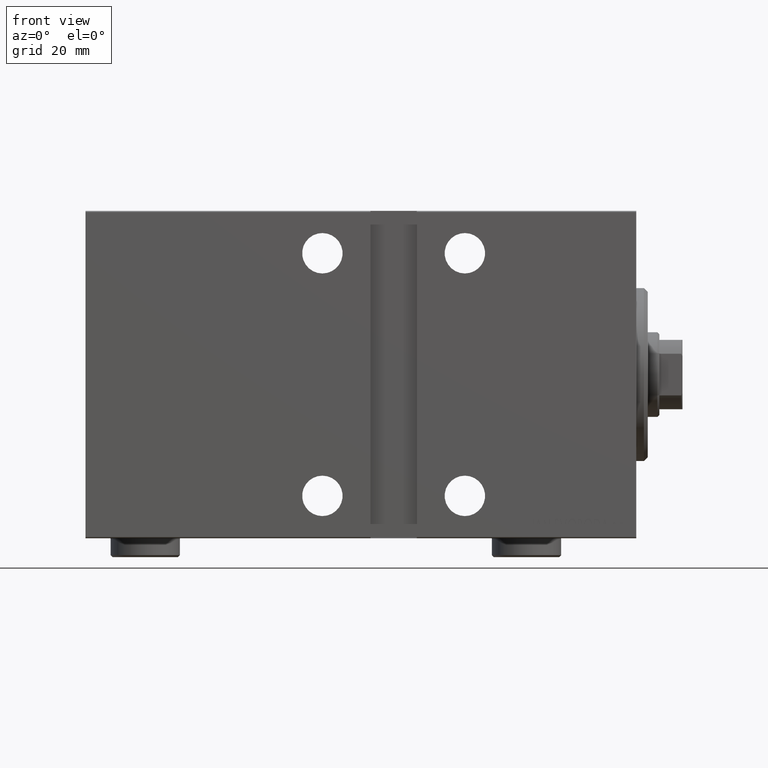
[diagram: clean part render]
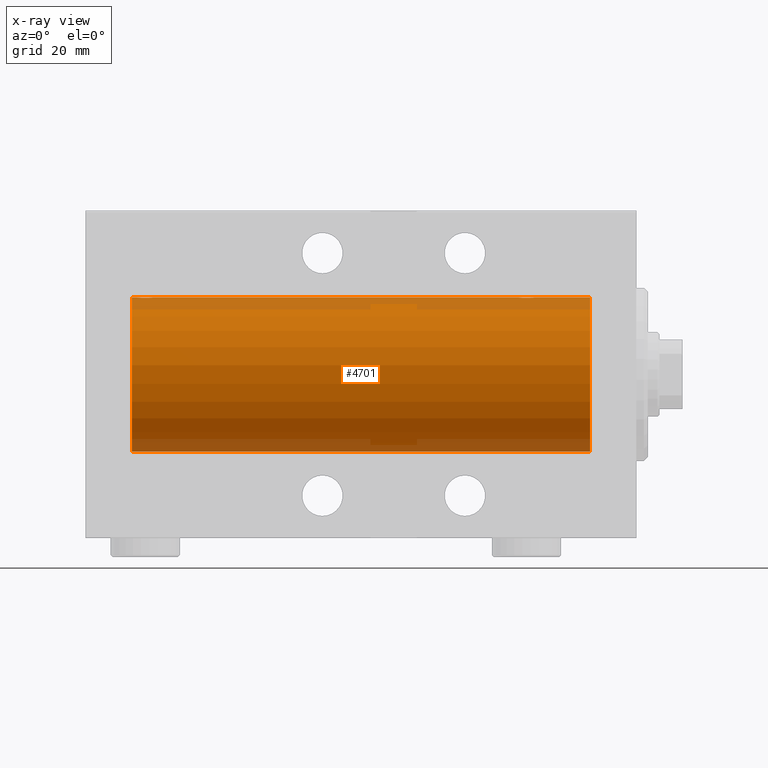
[diagram: x-ray — body ghosted, one internal face saturated and labeled with its STEP entity id]
A machine part, front view, then the same camera in x-ray: the body is ghosted and one INTERNAL B-rep face — a face not visible from any outside direction — is saturated and labeled: STEP entity #4701.
In plain terms, the highlighted cylindrical surface (partial cylindrical patch) has radius 20 mm, axis along (1, 0, -0).
Its self-contained STEP definition (entity closure, byte-faithful):
#105 = CARTESIAN_POINT ( 'NONE',  ( 128.0251390845499770, 1.947330458682955401, 19.90522393307485061 ) ) ;
#765 = CARTESIAN_POINT ( 'NONE',  ( 126.2803972465025311, 1.590453176650906020, 19.93679350243183990 ) ) ;
#1325 = CARTESIAN_POINT ( 'NONE',  ( 30.09059733457553065, 1.219458756546272449, 19.96308513509966787 ) ) ;
#1468 = EDGE_CURVE ( 'NONE', #35119, #9292, #1924, .T. ) ;
#1710 = CYLINDRICAL_SURFACE ( 'NONE', #23606, 20.00000000000000000 ) ;
#1744 = EDGE_CURVE ( 'NONE', #19951, #10643, #1963, .T. ) ;
#1769 = CARTESIAN_POINT ( 'NONE',  ( 27.28039724650255593, 1.590453176650916234, 19.93679350243183634 ) ) ;
#1899 = EDGE_CURVE ( 'NONE', #5904, #15251, #21778, .T. ) ;
#1924 = CIRCLE ( 'NONE', #38482, 20.00000000000000000 ) ;
#1963 = CIRCLE ( 'NONE', #9848, 20.00000000000000000 ) ;
#2289 = LINE ( 'NONE', #9251, #23732 ) ;
#2429 = CARTESIAN_POINT ( 'NONE',  ( 26.99261358456010385, 1.321069663197669053, 19.95654117037011233 ) ) ;
#2524 = CARTESIAN_POINT ( 'NONE',  ( 131.0000000000000000, 2.449293598294706513E-15, -20.00000000000000000 ) ) ;
#3674 = CARTESIAN_POINT ( 'NONE',  ( 131.0000000000000000, 0.000000000000000000, 20.00000000000000000 ) ) ;
#3697 = CARTESIAN_POINT ( 'NONE',  ( 126.8562886936014991, 1.898109641280507187, 19.90978941500366872 ) ) ;
#4144 = CARTESIAN_POINT ( 'NONE',  ( 129.4361522838333087, 0.5179893069484683421, 19.99370013622814568 ) ) ;
#4701 = ADVANCED_FACE ( 'NONE', ( #5285 ), #1710, .F. ) ;
#4911 = CARTESIAN_POINT ( 'NONE',  ( 29.72950112230634190, 1.598854313793186321, 19.93684595445884966 ) ) ;
#5126 = CARTESIAN_POINT ( 'NONE',  ( 26.50000000000001066, 0.1305706983324434745, 20.00000000000000000 ) ) ;
#5285 = FACE_OUTER_BOUND ( 'NONE', #10616, .T. ) ;
#5904 = VERTEX_POINT ( 'NONE', #41506 ) ;
#6629 = CARTESIAN_POINT ( 'NONE',  ( 125.5000000000000000, -1.553227679334911194E-23, 20.00000000000000000 ) ) ;
#6731 = DIRECTION ( 'NONE',  ( -1.000000000000000000, 0.000000000000000000, 0.000000000000000000 ) ) ;
#6840 = CARTESIAN_POINT ( 'NONE',  ( 125.6021031264113503, 0.6443418861413100496, 19.98998539619404013 ) ) ;
#7402 = CARTESIAN_POINT ( 'NONE',  ( 27.85628869360149196, 1.898109641280505189, 19.90978941500366872 ) ) ;
#8514 = CARTESIAN_POINT ( 'NONE',  ( 27.61403810544162596, 1.797847595792765096, 19.91909332229798224 ) ) ;
#8527 = VERTEX_POINT ( 'NONE', #42130 ) ;
#8666 = CARTESIAN_POINT ( 'NONE',  ( 131.0000000000000000, 0.000000000000000000, 0.000000000000000000 ) ) ;
#9251 = CARTESIAN_POINT ( 'NONE',  ( 131.0000000000000000, 0.000000000000000000, 20.00000000000000000 ) ) ;
#9292 = VERTEX_POINT ( 'NONE', #17060 ) ;
#9702 = DIRECTION ( 'NONE',  ( -1.000000000000000000, 0.000000000000000000, 0.000000000000000000 ) ) ;
#9848 = AXIS2_PLACEMENT_3D ( 'NONE', #37515, #6731, #37069 ) ;
#9977 = LINE ( 'NONE', #3674, #10834 ) ;
#10223 = CARTESIAN_POINT ( 'NONE',  ( 125.9099293231032703, 1.220099331833889966, 19.96304379627741099 ) ) ;
#10358 = CARTESIAN_POINT ( 'NONE',  ( 11.99999999999999645, 0.000000000000000000, 0.000000000000000000 ) ) ;
#10443 = CARTESIAN_POINT ( 'NONE',  ( 126.1793983491616729, 1.507796451871735277, 19.94330239452387588 ) ) ;
#10616 = EDGE_LOOP ( 'NONE', ( #41520, #21507, #22777, #12644, #34322, #41888, #24863, #29429 ) ) ;
#10643 = VERTEX_POINT ( 'NONE', #2524 ) ;
#10779 = CARTESIAN_POINT ( 'NONE',  ( 28.37018818709293200, 2.000047251570890250, 19.89974399317115683 ) ) ;
#10834 = VECTOR ( 'NONE', #40759, 1000.000000000000000 ) ;
#11671 = VECTOR ( 'NONE', #40701, 1000.000000000000000 ) ;
#12644 = ORIENTED_EDGE ( 'NONE', *, *, #21203, .T. ) ;
#12777 = CARTESIAN_POINT ( 'NONE',  ( 26.51308707988552271, 0.2631998640366427500, 19.99867931558986101 ) ) ;
#13823 = CARTESIAN_POINT ( 'NONE',  ( 127.7618015389743960, 1.999905101582724498, 19.89975827978156886 ) ) ;
#14263 = CARTESIAN_POINT ( 'NONE',  ( 129.0061577038071050, 1.322305185229308400, 19.95645382900617193 ) ) ;
#15032 = CARTESIAN_POINT ( 'NONE',  ( 30.00615770380713698, 1.322305185229310620, 19.95645382900617548 ) ) ;
#15251 = VERTEX_POINT ( 'NONE', #31245 ) ;
#15259 = CARTESIAN_POINT ( 'NONE',  ( 30.48701494615326268, 0.2622407139811113175, 19.99868965376115071 ) ) ;
#15483 = CARTESIAN_POINT ( 'NONE',  ( 27.49702773215045681, 1.735228749583832775, 19.92471474456648650 ) ) ;
#17060 = CARTESIAN_POINT ( 'NONE',  ( 11.99999999999999645, 2.449293598294706513E-15, -20.00000000000000000 ) ) ;
#17625 = CARTESIAN_POINT ( 'NONE',  ( 129.4999999999999432, 0.1322335637814734677, 19.99999999999999645 ) ) ;
#17846 = CARTESIAN_POINT ( 'NONE',  ( 129.0905973345755342, 1.219458756546272005, 19.96308513509966431 ) ) ;
#17957 = CARTESIAN_POINT ( 'NONE',  ( 30.43615228383326965, 0.5179893069484630130, 19.99370013622814568 ) ) ;
#18396 = CARTESIAN_POINT ( 'NONE',  ( 30.29721343056695915, 0.8872481584516769271, 19.98067755938510359 ) ) ;
#18557 = DIRECTION ( 'NONE',  ( 0.000000000000000000, 0.000000000000000000, 1.000000000000000000 ) ) ;
#19280 = CARTESIAN_POINT ( 'NONE',  ( 27.17939834916165509, 1.507796451871727283, 19.94330239452387232 ) ) ;
#19357 = DIRECTION ( 'NONE',  ( -1.000000000000000000, -0.000000000000000000, -0.000000000000000000 ) ) ;
#19951 = VERTEX_POINT ( 'NONE', #23591 ) ;
#21203 = EDGE_CURVE ( 'NONE', #8527, #43475, #40007, .T. ) ;
#21205 = CARTESIAN_POINT ( 'NONE',  ( 129.2972134305669556, 0.8872481584516767050, 19.98067755938510004 ) ) ;
#21319 = CARTESIAN_POINT ( 'NONE',  ( 30.39765113166074428, 0.6450624715427626388, 19.98996196681220638 ) ) ;
#21348 = EDGE_CURVE ( 'NONE', #43475, #5904, #9977, .T. ) ;
#21507 = ORIENTED_EDGE ( 'NONE', *, *, #1744, .F. ) ;
#21522 = LINE ( 'NONE', #35442, #28889 ) ;
#21778 = B_SPLINE_CURVE_WITH_KNOTS ( 'NONE', 3,
 ( #24682, #28483, #15259, #17957, #21319, #18396, #32086, #1325, #15032, #4911, #32306, #35021, #41550, #10779, #24464, #38185, #7402, #8514, #15483, #1769, #19280, #2429, #36573, #22633, #23089, #28922, #43532, #12777, #5126, #29147 ),
 .UNSPECIFIED., .F., .F.,
 ( 4, 2, 2, 2, 2, 2, 2, 2, 2, 2, 2, 2, 2, 2, 4 ),
 ( 1.589643878913756925E-18, 0.0003910512220831163896, 0.0007821024441662312613, 0.001173153666249345970, 0.001564204888332460788, 0.002346307332498690640, 0.003128409776664920275, 0.003519460998748035092, 0.003910512220831149910, 0.004301563442914264727, 0.004692614664997379545, 0.005083665887080494362, 0.005474717109163609180, 0.005865768331246723997, 0.006256819553329838815 ),
 .UNSPECIFIED. ) ;
#22363 = DIRECTION ( 'NONE',  ( -1.000000000000000000, -0.000000000000000000, -0.000000000000000000 ) ) ;
#22633 = CARTESIAN_POINT ( 'NONE',  ( 26.76510545398015495, 1.003547732426806283, 19.97510079925437765 ) ) ;
#22777 = ORIENTED_EDGE ( 'NONE', *, *, #25768, .T. ) ;
#22944 = LINE ( 'NONE', #36657, #11671 ) ;
#23089 = CARTESIAN_POINT ( 'NONE',  ( 26.70246098872836882, 0.8865903856744302702, 19.98070694681039328 ) ) ;
#23591 = CARTESIAN_POINT ( 'NONE',  ( 131.0000000000000000, 0.000000000000000000, 20.00000000000000000 ) ) ;
#23606 = AXIS2_PLACEMENT_3D ( 'NONE', #8666, #22363, #18557 ) ;
#23689 = CARTESIAN_POINT ( 'NONE',  ( 125.7024609887283901, 0.8865903856744294931, 19.98070694681039328 ) ) ;
#23732 = VECTOR ( 'NONE', #19357, 1000.000000000000000 ) ;
#24125 = CARTESIAN_POINT ( 'NONE',  ( 125.5642685113271284, 0.5196544277756696140, 19.99365919015135873 ) ) ;
#24464 = CARTESIAN_POINT ( 'NONE',  ( 28.23758582179998555, 1.987020435121076289, 19.90106552791689154 ) ) ;
#24575 = CARTESIAN_POINT ( 'NONE',  ( 125.9926135845601323, 1.321069663197678157, 19.95654117037011233 ) ) ;
#24682 = CARTESIAN_POINT ( 'NONE',  ( 30.50000000000000000, -1.046815686542558243E-15, 20.00000000000000000 ) ) ;
#24863 = ORIENTED_EDGE ( 'NONE', *, *, #30831, .T. ) ;
#25768 = EDGE_CURVE ( 'NONE', #19951, #8527, #2289, .T. ) ;
#26747 = DIRECTION ( 'NONE',  ( 0.000000000000000000, 0.000000000000000000, 1.000000000000000000 ) ) ;
#27262 = CARTESIAN_POINT ( 'NONE',  ( 128.7295011223063455, 1.598854313793185433, 19.93684595445884611 ) ) ;
#27481 = CARTESIAN_POINT ( 'NONE',  ( 127.2375858217999962, 1.987020435121074069, 19.90106552791689154 ) ) ;
#27928 = CARTESIAN_POINT ( 'NONE',  ( 128.5064575907383357, 1.747830109444743485, 19.92373272380676852 ) ) ;
#28238 = DIRECTION ( 'NONE',  ( -1.000000000000000000, -0.000000000000000000, -0.000000000000000000 ) ) ;
#28483 = CARTESIAN_POINT ( 'NONE',  ( 30.49999999999999645, 0.1322335637814730791, 20.00000000000000000 ) ) ;
#28889 = VECTOR ( 'NONE', #28238, 1000.000000000000000 ) ;
#28922 = CARTESIAN_POINT ( 'NONE',  ( 26.60210312641134323, 0.6443418861413102716, 19.98998539619404724 ) ) ;
#29147 = CARTESIAN_POINT ( 'NONE',  ( 26.50000000000000355, -1.552596590610734385E-23, 20.00000000000000000 ) ) ;
#29345 = EDGE_CURVE ( 'NONE', #10643, #9292, #22944, .T. ) ;
#29429 = ORIENTED_EDGE ( 'NONE', *, *, #1468, .T. ) ;
#30831 = EDGE_CURVE ( 'NONE', #15251, #35119, #21522, .T. ) ;
#31245 = CARTESIAN_POINT ( 'NONE',  ( 26.50000000000000355, -1.552596590610734385E-23, 20.00000000000000000 ) ) ;
#31299 = CARTESIAN_POINT ( 'NONE',  ( 129.2357636512789441, 1.002099838626317130, 19.97517568592526160 ) ) ;
#31526 = CARTESIAN_POINT ( 'NONE',  ( 127.3701881870929782, 2.000047251570887141, 19.89974399317116038 ) ) ;
#32086 = CARTESIAN_POINT ( 'NONE',  ( 30.23576365127896182, 1.002099838626316908, 19.97517568592526160 ) ) ;
#32306 = CARTESIAN_POINT ( 'NONE',  ( 29.50645759073830376, 1.747830109444745705, 19.92373272380676497 ) ) ;
#34322 = ORIENTED_EDGE ( 'NONE', *, *, #21348, .T. ) ;
#34906 = CARTESIAN_POINT ( 'NONE',  ( 129.4870149461532378, 0.2622407139811170351, 19.99868965376115426 ) ) ;
#35021 = CARTESIAN_POINT ( 'NONE',  ( 29.02513908454999481, 1.947330458682957621, 19.90522393307485061 ) ) ;
#35119 = VERTEX_POINT ( 'NONE', #36838 ) ;
#35442 = CARTESIAN_POINT ( 'NONE',  ( 131.0000000000000000, 0.000000000000000000, 20.00000000000000000 ) ) ;
#36573 = CARTESIAN_POINT ( 'NONE',  ( 26.90992932310325614, 1.220099331833898404, 19.96304379627741099 ) ) ;
#36657 = CARTESIAN_POINT ( 'NONE',  ( 131.0000000000000000, 2.449293598294706513E-15, -20.00000000000000000 ) ) ;
#36838 = CARTESIAN_POINT ( 'NONE',  ( 11.99999999999999645, 0.000000000000000000, 20.00000000000000000 ) ) ;
#37069 = DIRECTION ( 'NONE',  ( 0.000000000000000000, 0.000000000000000000, 1.000000000000000000 ) ) ;
#37406 = CARTESIAN_POINT ( 'NONE',  ( 125.5130870798855369, 0.2631998640366448594, 19.99867931558985390 ) ) ;
#37515 = CARTESIAN_POINT ( 'NONE',  ( 131.0000000000000000, 0.000000000000000000, 0.000000000000000000 ) ) ;
#37624 = CARTESIAN_POINT ( 'NONE',  ( 129.3976511316607514, 0.6450624715427629718, 19.98996196681220638 ) ) ;
#37849 = CARTESIAN_POINT ( 'NONE',  ( 125.4999999999999716, 0.1305706983324441128, 20.00000000000000000 ) ) ;
#38185 = CARTESIAN_POINT ( 'NONE',  ( 27.98100525813888595, 1.935912154109700412, 19.90610216711451130 ) ) ;
#38482 = AXIS2_PLACEMENT_3D ( 'NONE', #10358, #9702, #26747 ) ;
#40007 = B_SPLINE_CURVE_WITH_KNOTS ( 'NONE', 3,
 ( #40996, #17625, #34906, #4144, #37624, #21205, #31299, #17846, #14263, #27262, #27928, #105, #13823, #31526, #27481, #44360, #3697, #41655, #41216, #765, #10443, #24575, #10223, #40783, #23689, #6840, #24125, #37406, #37849, #6629 ),
 .UNSPECIFIED., .F., .F.,
 ( 4, 2, 2, 2, 2, 2, 2, 2, 2, 2, 2, 2, 2, 2, 4 ),
 ( 6.124416011431124747E-18, 0.0003910512220831417057, 0.0007821024441662774484, 0.001173153666249413191, 0.001564204888332549259, 0.002346307332498820310, 0.003128409776665091579, 0.003519460998748185580, 0.003910512220831279147, 0.004301563442914373148, 0.004692614664997467148, 0.005083665887080561149, 0.005474717109163655150, 0.005865768331246749151, 0.006256819553329842284 ),
 .UNSPECIFIED. ) ;
#40701 = DIRECTION ( 'NONE',  ( -1.000000000000000000, -0.000000000000000000, -0.000000000000000000 ) ) ;
#40759 = DIRECTION ( 'NONE',  ( -1.000000000000000000, -0.000000000000000000, -0.000000000000000000 ) ) ;
#40783 = CARTESIAN_POINT ( 'NONE',  ( 125.7651054539801692, 1.003547732426797401, 19.97510079925437054 ) ) ;
#40946 = CARTESIAN_POINT ( 'NONE',  ( 125.5000000000000000, -1.553227679334911194E-23, 20.00000000000000000 ) ) ;
#40996 = CARTESIAN_POINT ( 'NONE',  ( 129.5000000000000000, 6.302651633021393742E-15, 20.00000000000000000 ) ) ;
#41216 = CARTESIAN_POINT ( 'NONE',  ( 126.4970277321504568, 1.735228749583823227, 19.92471474456648650 ) ) ;
#41506 = CARTESIAN_POINT ( 'NONE',  ( 30.50000000000000000, -1.046815686542558243E-15, 20.00000000000000000 ) ) ;
#41520 = ORIENTED_EDGE ( 'NONE', *, *, #29345, .F. ) ;
#41550 = CARTESIAN_POINT ( 'NONE',  ( 28.76180153897437464, 1.999905101582727163, 19.89975827978156175 ) ) ;
#41655 = CARTESIAN_POINT ( 'NONE',  ( 126.6140381054416366, 1.797847595792768205, 19.91909332229798935 ) ) ;
#41888 = ORIENTED_EDGE ( 'NONE', *, *, #1899, .T. ) ;
#42130 = CARTESIAN_POINT ( 'NONE',  ( 129.5000000000000000, 6.302651633021393742E-15, 20.00000000000000000 ) ) ;
#43475 = VERTEX_POINT ( 'NONE', #40946 ) ;
#43532 = CARTESIAN_POINT ( 'NONE',  ( 26.56426851132707512, 0.5196544277756682817, 19.99365919015135518 ) ) ;
#44360 = CARTESIAN_POINT ( 'NONE',  ( 126.9810052581388788, 1.935912154109699079, 19.90610216711450420 ) ) ;